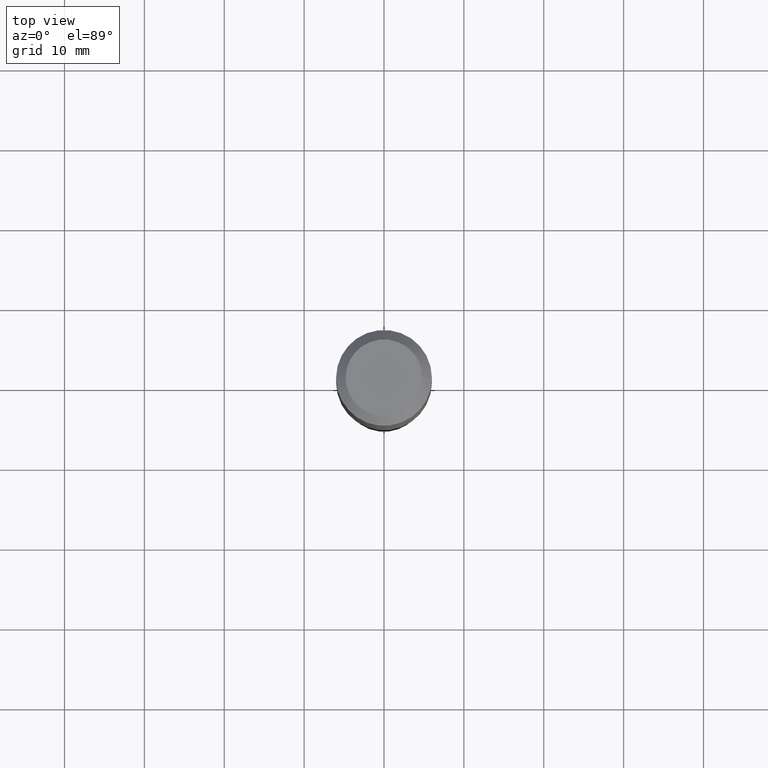
[diagram: clean part render]
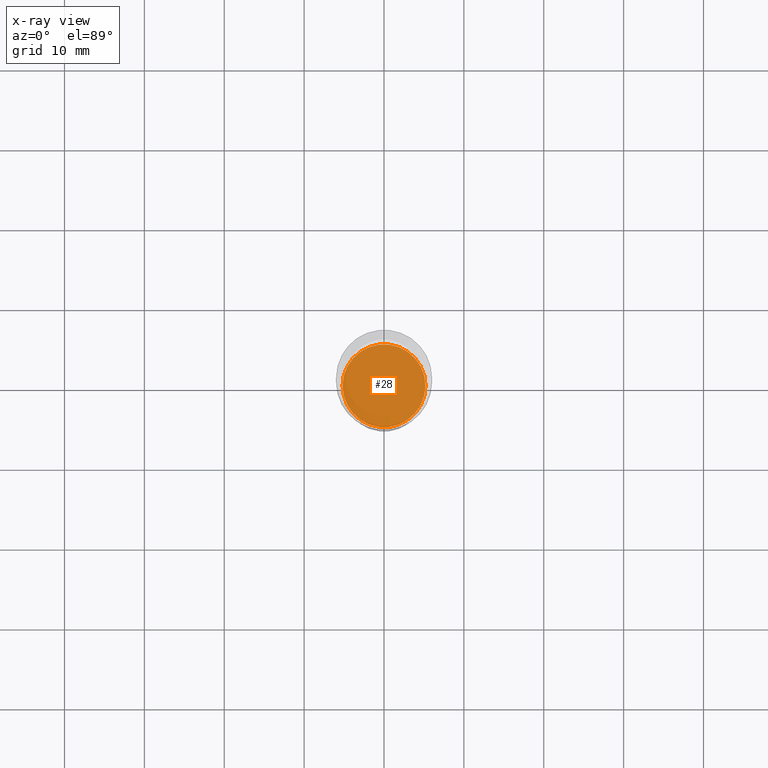
[diagram: x-ray — body ghosted, one internal face saturated and labeled with its STEP entity id]
A machine part, top view, then the same camera in x-ray: the body is ghosted and one INTERNAL B-rep face — a face not visible from any outside direction — is saturated and labeled: STEP entity #28.
In plain terms, the highlighted planar face has unit normal (-0, 0, 1).
Its self-contained STEP definition (entity closure, byte-faithful):
#28 = ADVANCED_FACE ( 'NONE', ( #415 ), #301, .F. ) ;
#31 = VERTEX_POINT ( 'NONE', #101 ) ;
#36 = AXIS2_PLACEMENT_3D ( 'NONE', #220, #504, #171 ) ;
#43 = AXIS2_PLACEMENT_3D ( 'NONE', #402, #410, #49 ) ;
#49 = DIRECTION ( 'NONE',  ( 1.000000000000000000, -6.982962677686263555E-15, 0.000000000000000000 ) ) ;
#95 = DIRECTION ( 'NONE',  ( -2.445468806185136597E-29, 3.491481338843145583E-15, 1.000000000000000000 ) ) ;
#101 = CARTESIAN_POINT ( 'NONE',  ( -0.2041999999999999926, -6.574385548805808888E-15, -2.299300000000000122 ) ) ;
#129 = EDGE_LOOP ( 'NONE', ( #456, #153 ) ) ;
#140 = VERTEX_POINT ( 'NONE', #440 ) ;
#153 = ORIENTED_EDGE ( 'NONE', *, *, #364, .F. ) ;
#166 = CIRCLE ( 'NONE', #43, 0.2041999999999999926 ) ;
#171 = DIRECTION ( 'NONE',  ( 1.000000000000000000, -6.982962677686265922E-15, 4.876176775795935793E-29 ) ) ;
#220 = CARTESIAN_POINT ( 'NONE',  ( 5.622866426061484699E-29, -8.027963042402044222E-15, -2.299300000000000122 ) ) ;
#246 = CIRCLE ( 'NONE', #354, 0.2041999999999999926 ) ;
#291 = CARTESIAN_POINT ( 'NONE',  ( 5.622866426061484699E-29, -8.027963042402044222E-15, -2.299300000000000122 ) ) ;
#301 = PLANE ( 'NONE',  #36 ) ;
#334 = EDGE_CURVE ( 'NONE', #140, #31, #246, .T. ) ;
#354 = AXIS2_PLACEMENT_3D ( 'NONE', #291, #95, #407 ) ;
#364 = EDGE_CURVE ( 'NONE', #31, #140, #166, .T. ) ;
#402 = CARTESIAN_POINT ( 'NONE',  ( 5.622866426061484699E-29, -8.027963042402044222E-15, -2.299300000000000122 ) ) ;
#407 = DIRECTION ( 'NONE',  ( 1.000000000000000000, -6.982962677686263555E-15, 0.000000000000000000 ) ) ;
#410 = DIRECTION ( 'NONE',  ( -2.445468806185136597E-29, 3.491481338843145583E-15, 1.000000000000000000 ) ) ;
#415 = FACE_OUTER_BOUND ( 'NONE', #129, .T. ) ;
#440 = CARTESIAN_POINT ( 'NONE',  ( 0.2041999999999999926, -9.453884021185578824E-15, -2.299300000000000122 ) ) ;
#456 = ORIENTED_EDGE ( 'NONE', *, *, #334, .F. ) ;
#504 = DIRECTION ( 'NONE',  ( -2.438088387897960049E-29, 3.491481338843145188E-15, 1.000000000000000000 ) ) ;